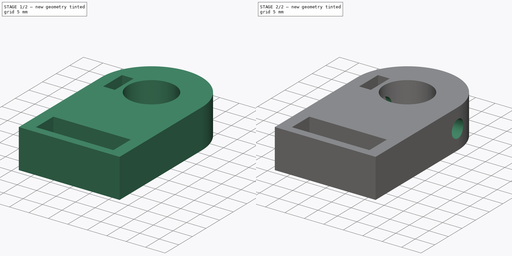
[diagram: build sequence overview — one tinted view per stage of 2, left to right]
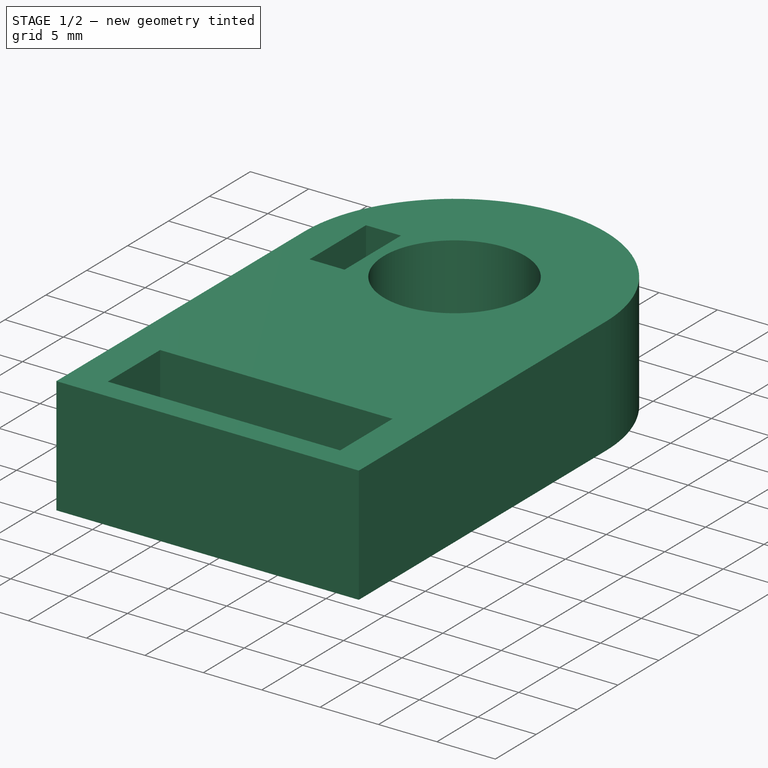
[diagram: stage 1 of 2 — iso view after this stage's code; geometry added in this stage tinted green]
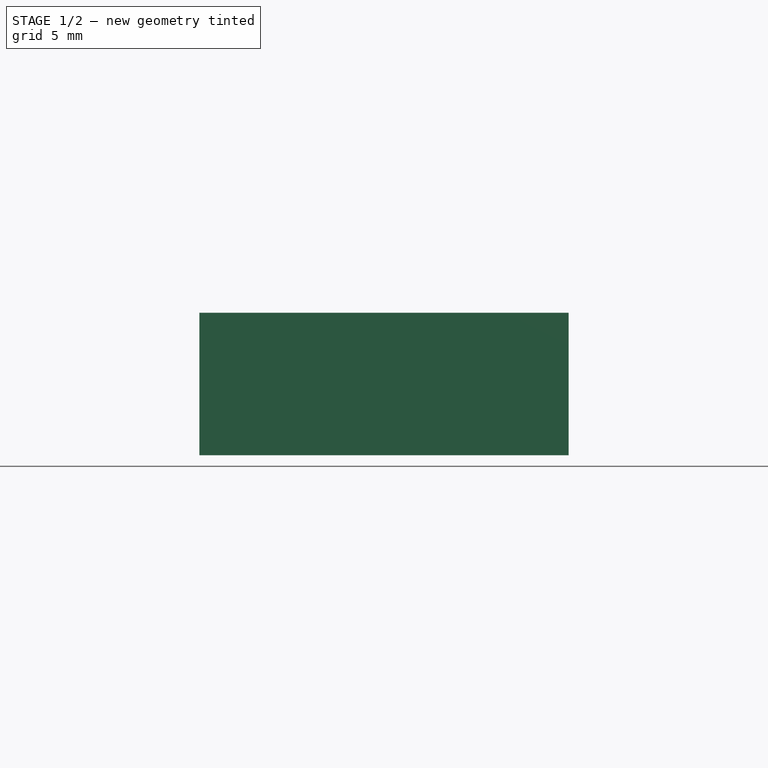
[diagram: stage 1 of 2 — front view after this stage's code; geometry added in this stage tinted green]
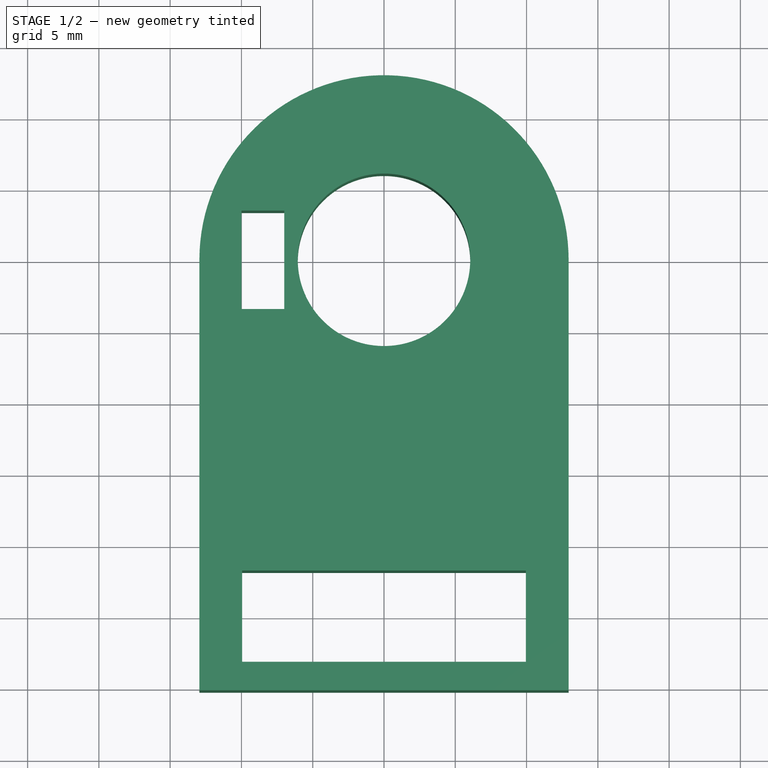
[diagram: stage 1 of 2 — top view after this stage's code; geometry added in this stage tinted green]
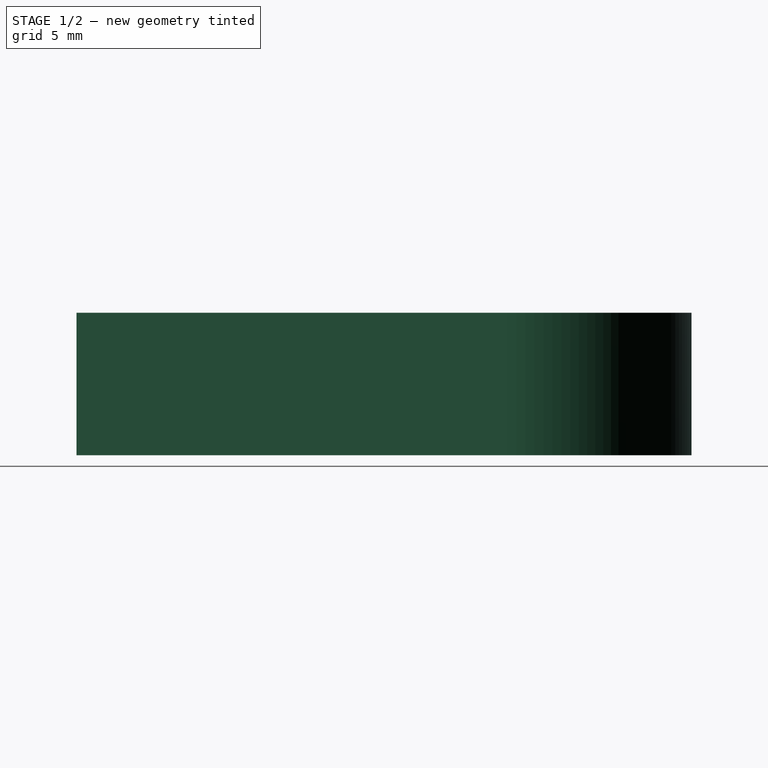
[diagram: stage 1 of 2 — right view after this stage's code; geometry added in this stage tinted green]
FCSTD DOCUMENT
Label: Z-endstop-mount
objects: Sketcher::SketchObject×4, PartDesign::Pocket×3, PartDesign::Pad×1
note: 12 computed .brp shape members not serialized (recipe doc carries the construction recipe); baked Part::Feature solids carry a one-line shape summary decoded from their .brp

FEATURE [Sketcher::SketchObject] Sketch
  sketch-geometry (9):
    g0: Circle CenterX=0 CenterY=0 CenterZ=0 NormalX=0 NormalY=0 NormalZ=1 Radius=6.05
    g1: LineSegment StartX=-9.95 StartY=-21.8 StartZ=0 EndX=9.95 EndY=-21.8 EndZ=0
    g2: LineSegment StartX=9.95 StartY=-21.8 StartZ=0 EndX=9.95 EndY=-28.2 EndZ=0
    g3: LineSegment StartX=9.95 StartY=-28.2 StartZ=0 EndX=-9.95 EndY=-28.2 EndZ=0
    g4: LineSegment StartX=-9.95 StartY=-28.2 StartZ=0 EndX=-9.95 EndY=-21.8 EndZ=0
    g5: ArcOfCircle CenterX=0 CenterY=0 CenterZ=0 NormalX=0 NormalY=0 NormalZ=1 Radius=12.95 StartAngle=2.978e-08 EndAngle=3.14159
    g6: LineSegment StartX=-12.95 StartY=-7.5712e-08 StartZ=0 EndX=-12.95 EndY=-30.2 EndZ=0
    g7: LineSegment StartX=-12.95 StartY=-30.2 StartZ=0 EndX=12.95 EndY=-30.2 EndZ=0
    g8: LineSegment StartX=12.95 StartY=-30.2 StartZ=0 EndX=12.95 EndY=3.85656e-07 EndZ=0
  constraints (26):
    c: Coincident(g0,g-1)
    c: Radius(g0) = 6.05
    c: Coincident(g1,g2)
    c: Coincident(g2,g3)
    c: Coincident(g3,g4)
    c: Coincident(g4,g1)
    c: Horizontal(g1)
    c: Horizontal(g3)
    c: Vertical(g2)
    c: Vertical(g4)
    c: Distance(g2) = 6.4
    c: Distance(g3) = 19.9
    c: Symmetric(g1,g1,g-2)
    c: DistanceY(g-1,g1) = -21.8
    c: Coincident(g5,g-1)
    c: Vertical(g6)
    c: Coincident(g6,g7)
    c: Horizontal(g7)
    c: Coincident(g7,g8)
    c: Vertical(g8)
    c: DistanceX(g3,g6) = -3
    c: DistanceY(g3,g6) = -2
    c: Symmetric(g6,g7,g-2)
    c: Coincident(g6,g5)
    c: Coincident(g8,g5)
    c: Tangent(g6,g5)
FEATURE [PartDesign::Pad] Pad
  Length = 10
  Length2 = 100
  Sketch = -> Sketch
  Type = 0
FEATURE [Sketcher::SketchObject] Sketch002
  Placement = pos=(0,0,10) rot=(0,0,1;0rad)
  Support = -> Pad [Face11]
  sketch-geometry (4):
    g0: LineSegment StartX=-10 StartY=3.45 StartZ=0 EndX=-7 EndY=3.45 EndZ=0
    g1: LineSegment StartX=-7 StartY=3.45 StartZ=0 EndX=-7 EndY=-3.45 EndZ=0
    g2: LineSegment StartX=-7 StartY=-3.45 StartZ=0 EndX=-10 EndY=-3.45 EndZ=0
    g3: LineSegment StartX=-10 StartY=-3.45 StartZ=0 EndX=-10 EndY=3.45 EndZ=0
  constraints (12):
    c: Coincident(g0,g1)
    c: Coincident(g1,g2)
    c: Coincident(g2,g3)
    c: Coincident(g3,g0)
    c: Horizontal(g0)
    c: Horizontal(g2)
    c: Vertical(g1)
    c: Vertical(g3)
    c: Symmetric(g0,g1,g-1)
    c: DistanceX(g-1,g1) = -7
    c: Distance(g0) = 3
    c: Distance(g3) = 6.9
FEATURE [PartDesign::Pocket] Pocket001
  Length = 12
  Sketch = -> Sketch002
  Type = 0
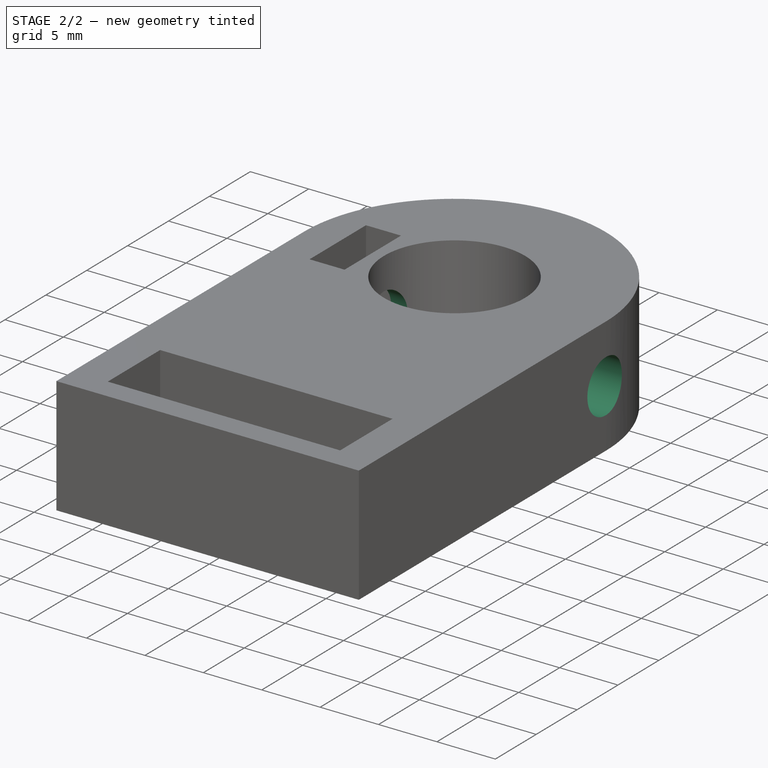
[diagram: stage 2 of 2 — iso view after this stage's code; geometry added in this stage tinted green]
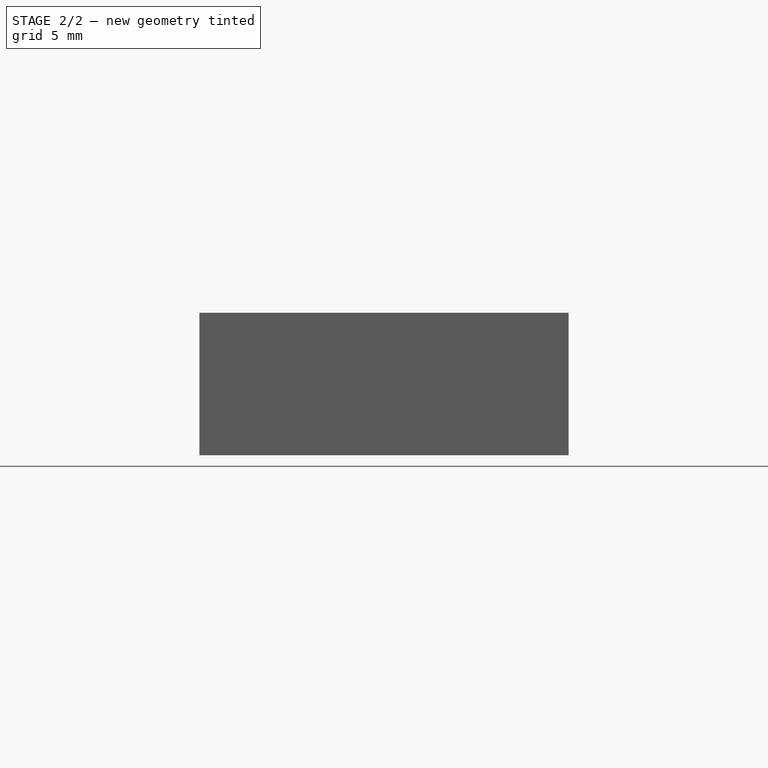
[diagram: stage 2 of 2 — front view after this stage's code; geometry added in this stage tinted green]
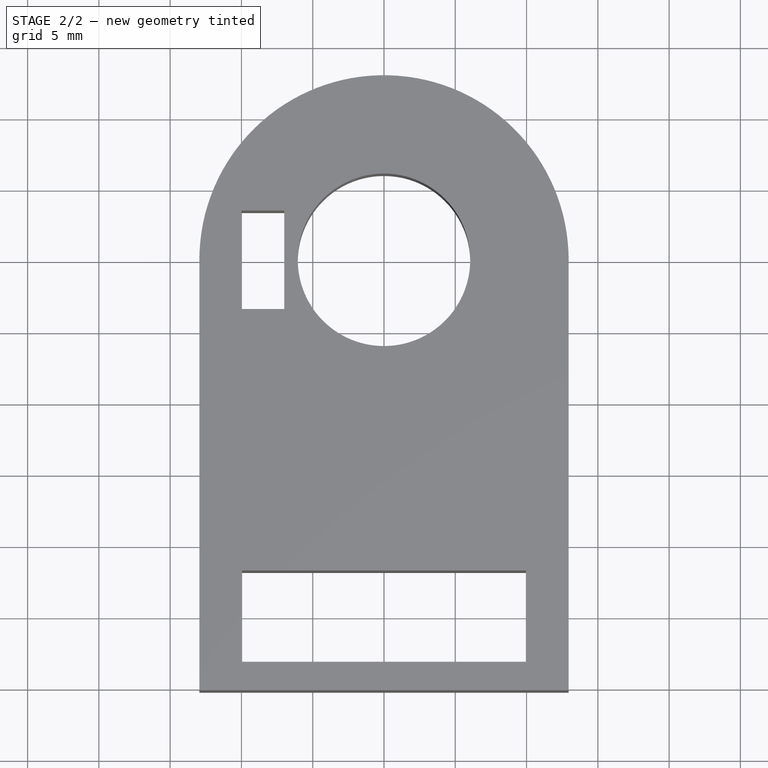
[diagram: stage 2 of 2 — top view after this stage's code; geometry added in this stage tinted green]
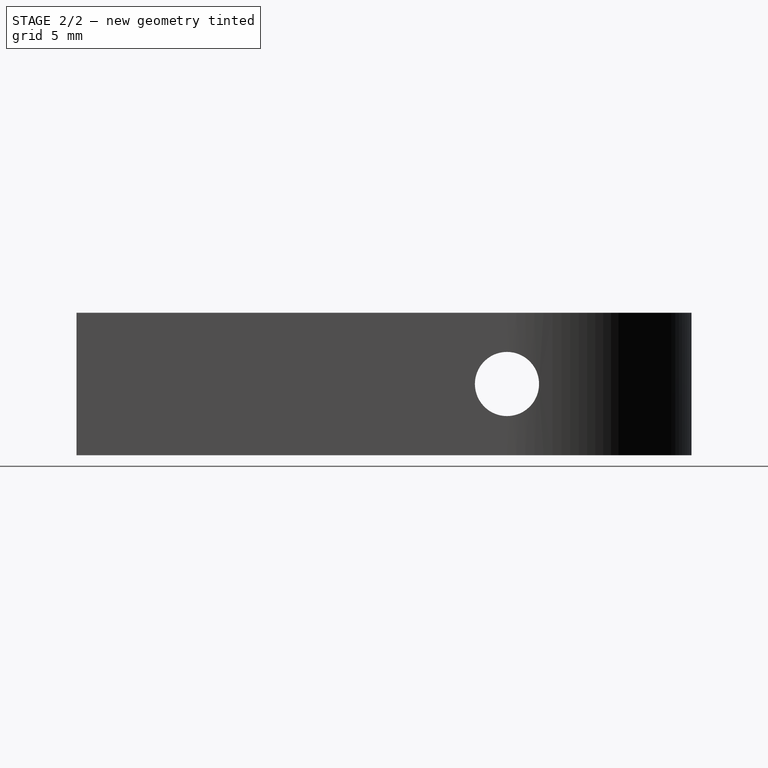
[diagram: stage 2 of 2 — right view after this stage's code; geometry added in this stage tinted green]
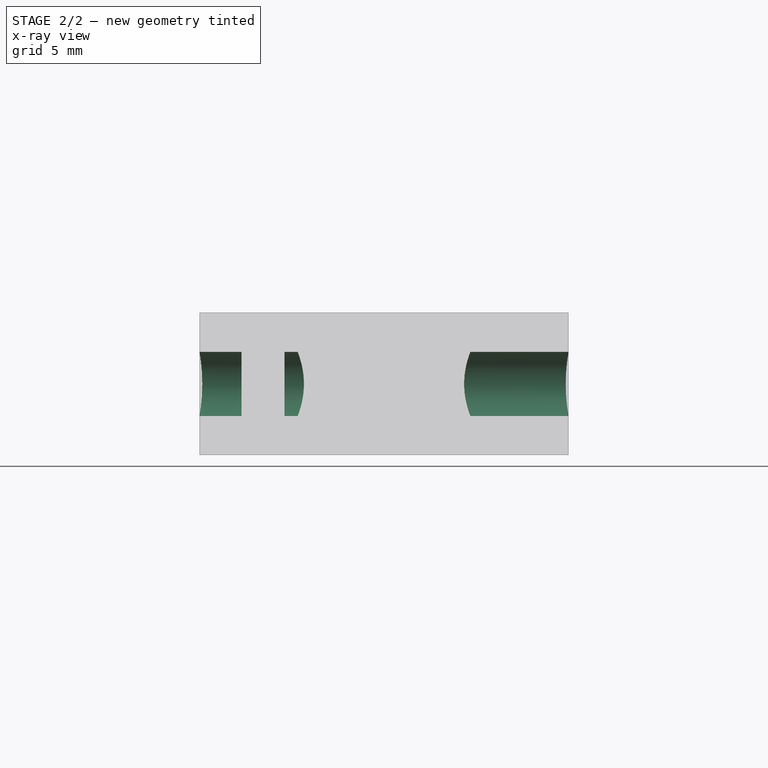
[diagram: stage 2 of 2 — x-ray composite at the front view; earlier geometry ghosted, this stage's added geometry solid]
FEATURE [Sketcher::SketchObject] Sketch003
  Placement = pos=(-9.95,0,0) rot=(0.57735,0.57735,0.57735;2.0944rad)
  Support = -> Pocket001 [Face12]
  sketch-geometry (1):
    g0: Circle CenterX=0 CenterY=5 CenterZ=0 NormalX=0 NormalY=0 NormalZ=1 Radius=2.25
  constraints (3):
    c: PointOnObject(g0,g-2)
    c: DistanceY(g-1,g0) = 5
    c: Radius(g0) = 2.25
FEATURE [PartDesign::Pocket] Pocket
  Length = 12
  Midplane = true
  Sketch = -> Sketch003
  Type = 0
FEATURE [Sketcher::SketchObject] Sketch004
  Placement = pos=(12.95,0,0) rot=(0.57735,0.57735,0.57735;2.0944rad)
  Support = -> Pocket [Face1]
  sketch-geometry (1):
    g0: Circle CenterX=0 CenterY=5 CenterZ=0 NormalX=0 NormalY=0 NormalZ=1 Radius=2.25
  constraints (3):
    c: PointOnObject(g0,g-2)
    c: DistanceY(g-1,g0) = 5
    c: Radius(g0) = 2.25
FEATURE [PartDesign::Pocket] Pocket002
  Length = 5
  Sketch = -> Sketch004
  Type = 1
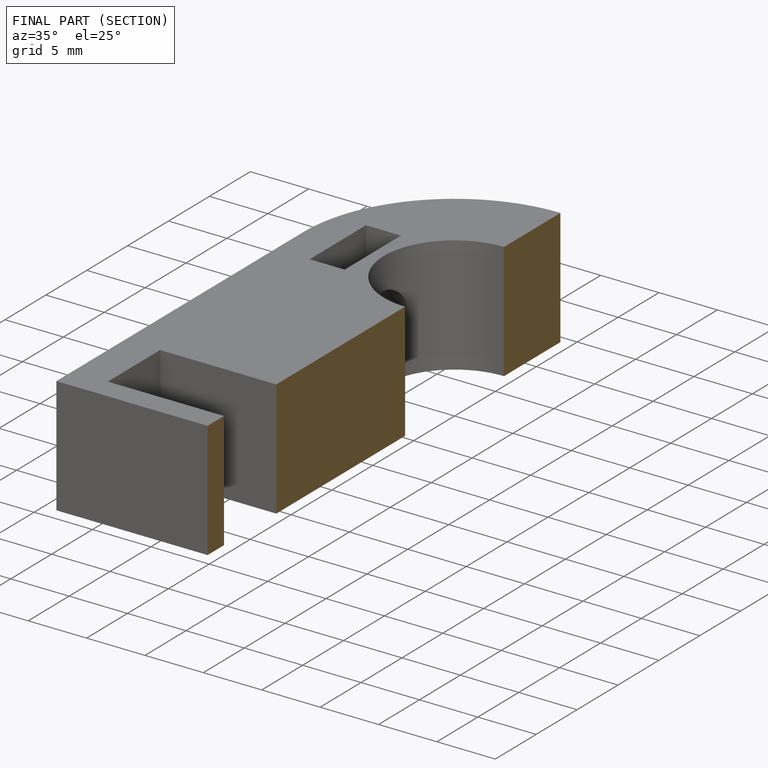
[diagram: finished part — half-section view (interior)]
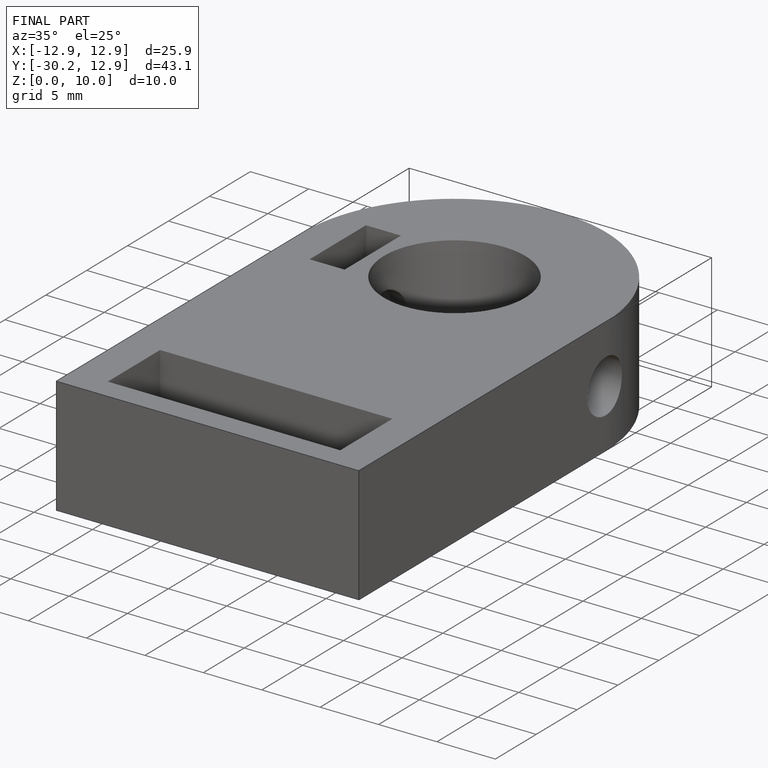
[diagram: finished part — iso view with bounding-box wireframe]
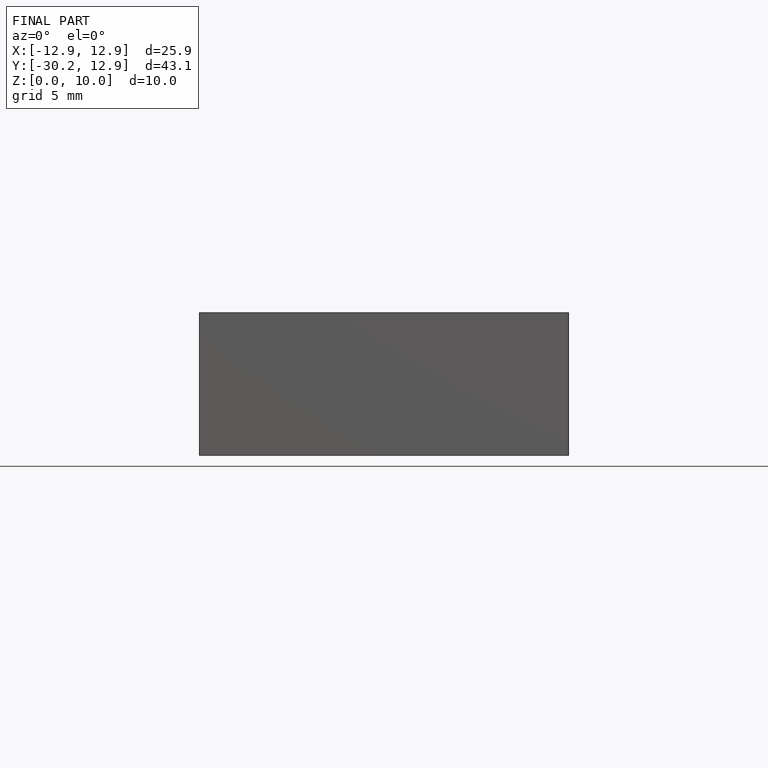
[diagram: finished part — front view with bounding-box wireframe]
